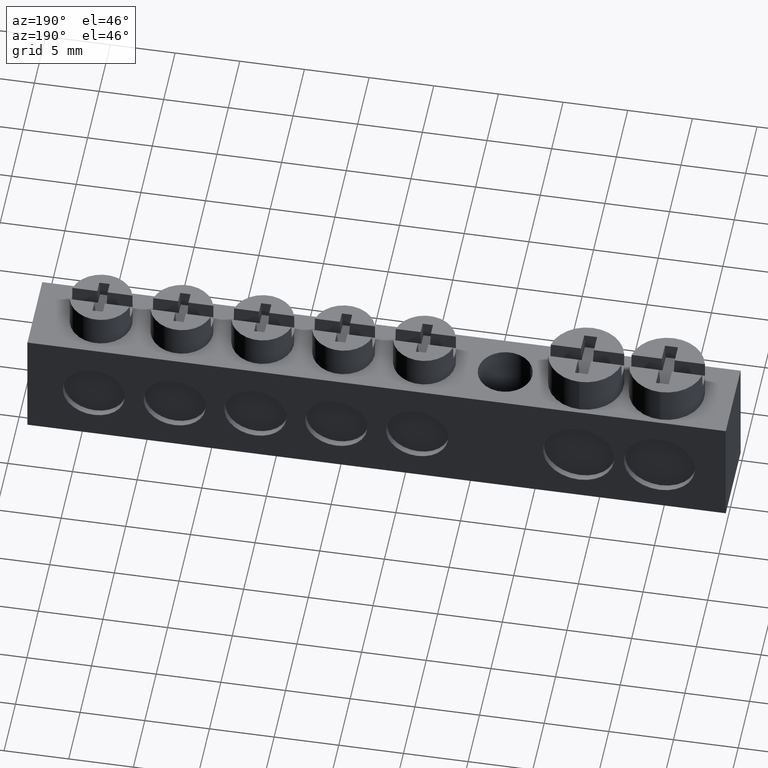
[diagram: clean part render]
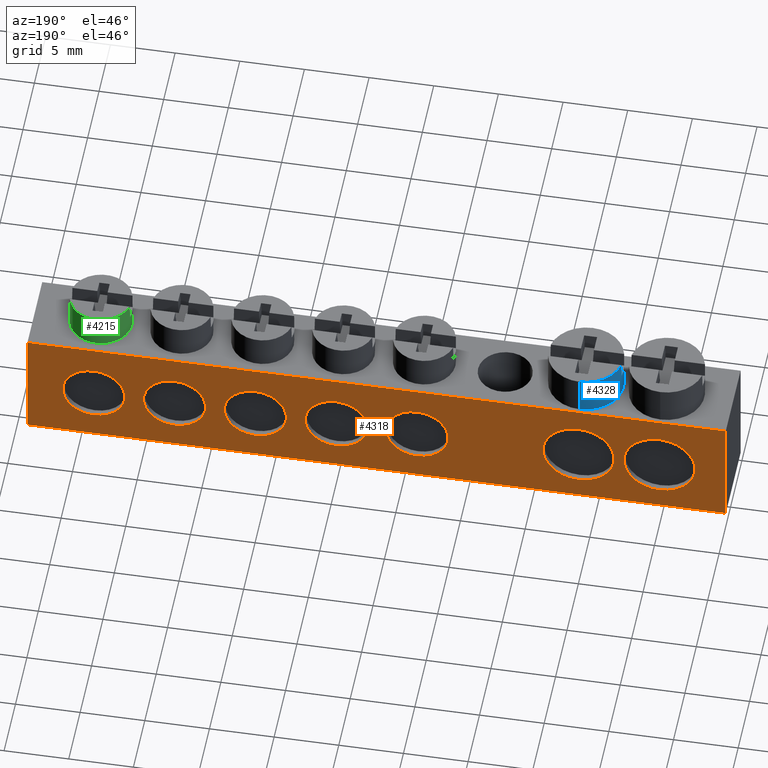
[diagram: same view with three faces highlighted in distinct colors, each labeled with its STEP entity id]
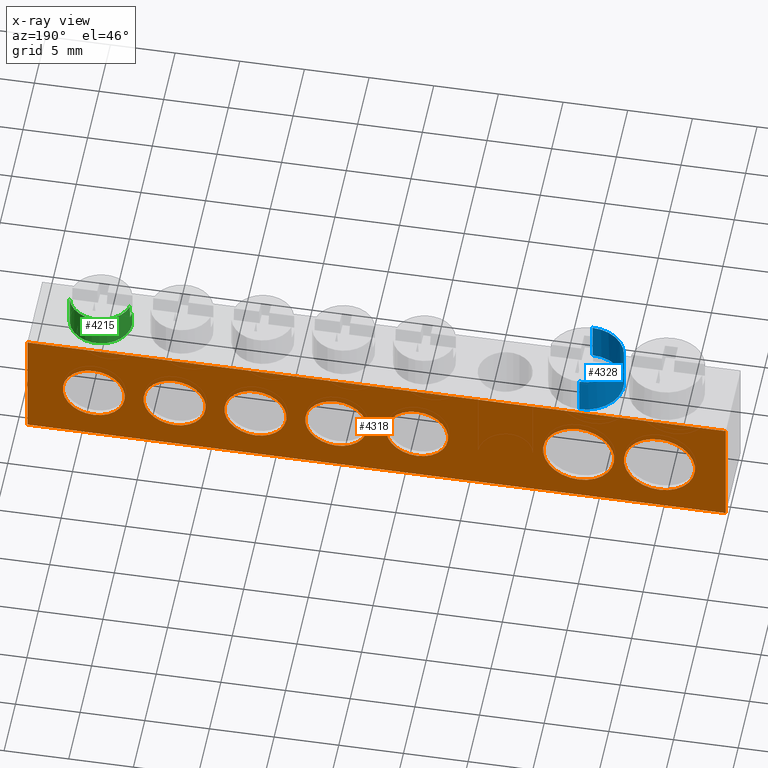
[diagram: x-ray of the same camera — body ghosted, the three highlighted faces saturated]
A machine part, auxiliary view with three faces highlighted in distinct colors.
The next image is the same camera in x-ray (body ghosted, the three faces saturated) — at least one of them is partly hidden behind the body in this view.
Their STEP definitions:

[orange] entity #4318 — the highlighted planar face has unit normal (0, -1, 0).
#6 = EDGE_CURVE ( 'NONE', #136, #224, #2558, .T. ) ;
#16 = EDGE_CURVE ( 'NONE', #207, #171, #2585, .T. ) ;
#18 = EDGE_CURVE ( 'NONE', #186, #226, #2563, .T. ) ;
#20 = EDGE_CURVE ( 'NONE', #223, #183, #2595, .T. ) ;
#22 = EDGE_CURVE ( 'NONE', #762, #738, #1889, .T. ) ;
#42 = EDGE_CURVE ( 'NONE', #234, #230, #2600, .T. ) ;
#46 = EDGE_CURVE ( 'NONE', #233, #135, #2617, .T. ) ;
#61 = EDGE_LOOP ( 'NONE', ( #585, #595 ) ) ;
#80 = EDGE_LOOP ( 'NONE', ( #596, #577 ) ) ;
#92 = EDGE_LOOP ( 'NONE', ( #593, #594 ) ) ;
#107 = EDGE_LOOP ( 'NONE', ( #565, #564, #580, #537 ) ) ;
#108 = EDGE_LOOP ( 'NONE', ( #587, #592 ) ) ;
#117 = EDGE_LOOP ( 'NONE', ( #444, #534 ) ) ;
#135 = VERTEX_POINT ( 'NONE', #2031 ) ;
#136 = VERTEX_POINT ( 'NONE', #2032 ) ;
#171 = VERTEX_POINT ( 'NONE', #2121 ) ;
#183 = VERTEX_POINT ( 'NONE', #2130 ) ;
#186 = VERTEX_POINT ( 'NONE', #2125 ) ;
#207 = VERTEX_POINT ( 'NONE', #2126 ) ;
#223 = VERTEX_POINT ( 'NONE', #2140 ) ;
#224 = VERTEX_POINT ( 'NONE', #2110 ) ;
#226 = VERTEX_POINT ( 'NONE', #2105 ) ;
#230 = VERTEX_POINT ( 'NONE', #2102 ) ;
#233 = VERTEX_POINT ( 'NONE', #2203 ) ;
#234 = VERTEX_POINT ( 'NONE', #2187 ) ;
#422 = ORIENTED_EDGE ( 'NONE', *, *, #4270, .F. ) ;
#444 = ORIENTED_EDGE ( 'NONE', *, *, #4254, .F. ) ;
#508 = ORIENTED_EDGE ( 'NONE', *, *, #16, .F. ) ;
#534 = ORIENTED_EDGE ( 'NONE', *, *, #6, .F. ) ;
#536 = ORIENTED_EDGE ( 'NONE', *, *, #4219, .F. ) ;
#537 = ORIENTED_EDGE ( 'NONE', *, *, #3015, .F. ) ;
#547 = ORIENTED_EDGE ( 'NONE', *, *, #3008, .F. ) ;
#564 = ORIENTED_EDGE ( 'NONE', *, *, #2995, .T. ) ;
#565 = ORIENTED_EDGE ( 'NONE', *, *, #2989, .T. ) ;
#577 = ORIENTED_EDGE ( 'NONE', *, *, #46, .F. ) ;
#580 = ORIENTED_EDGE ( 'NONE', *, *, #22, .T. ) ;
#585 = ORIENTED_EDGE ( 'NONE', *, *, #4264, .F. ) ;
#587 = ORIENTED_EDGE ( 'NONE', *, *, #4227, .F. ) ;
#592 = ORIENTED_EDGE ( 'NONE', *, *, #20, .F. ) ;
#593 = ORIENTED_EDGE ( 'NONE', *, *, #4240, .F. ) ;
#594 = ORIENTED_EDGE ( 'NONE', *, *, #42, .F. ) ;
#595 = ORIENTED_EDGE ( 'NONE', *, *, #18, .F. ) ;
#596 = ORIENTED_EDGE ( 'NONE', *, *, #4205, .F. ) ;
#612 = VERTEX_POINT ( 'NONE', #2146 ) ;
#690 = VERTEX_POINT ( 'NONE', #2250 ) ;
#738 = VERTEX_POINT ( 'NONE', #2319 ) ;
#743 = VERTEX_POINT ( 'NONE', #2282 ) ;
#762 = VERTEX_POINT ( 'NONE', #2271 ) ;
#782 = VERTEX_POINT ( 'NONE', #2292 ) ;
#884 = EDGE_LOOP ( 'NONE', ( #422, #508 ) ) ;
#903 = EDGE_LOOP ( 'NONE', ( #536, #547 ) ) ;
#1116 = CIRCLE ( 'NONE', #1155, 2.749999999999998200 ) ;
#1138 = CIRCLE ( 'NONE', #1139, 2.400000000000000800 ) ;
#1139 = AXIS2_PLACEMENT_3D ( 'NONE', #4340, #4378, #4391 ) ;
#1152 = CIRCLE ( 'NONE', #1157, 2.400000000000000800 ) ;
#1155 = AXIS2_PLACEMENT_3D ( 'NONE', #3381, #3454, #3518 ) ;
#1157 = AXIS2_PLACEMENT_3D ( 'NONE', #4081, #4092, #4101 ) ;
#1181 = CIRCLE ( 'NONE', #1212, 2.400000000000000800 ) ;
#1182 = CIRCLE ( 'NONE', #1204, 2.749999999999998200 ) ;
#1185 = AXIS2_PLACEMENT_3D ( 'NONE', #4503, #4512, #4498 ) ;
#1195 = CIRCLE ( 'NONE', #1209, 2.400000000000000800 ) ;
#1201 = CIRCLE ( 'NONE', #1185, 2.400000000000000800 ) ;
#1204 = AXIS2_PLACEMENT_3D ( 'NONE', #4397, #4393, #4430 ) ;
#1209 = AXIS2_PLACEMENT_3D ( 'NONE', #4487, #4511, #4488 ) ;
#1212 = AXIS2_PLACEMENT_3D ( 'NONE', #4468, #4465, #4470 ) ;
#1252 = AXIS2_PLACEMENT_3D ( 'NONE', #4677, #4652, #4689 ) ;
#1851 = CARTESIAN_POINT ( 'NONE',  ( 23.97000000000001300, 6.499999999999999100, 4.399999999999940800 ) ) ;
#1852 = DIRECTION ( 'NONE',  ( 0.0000000000000000000, 1.000000000000000000, 0.0000000000000000000 ) ) ;
#1865 = DIRECTION ( 'NONE',  ( 0.0000000000000000000, 0.0000000000000000000, -1.000000000000000000 ) ) ;
#1882 = CARTESIAN_POINT ( 'NONE',  ( 30.22000000000001000, 6.499999999999999100, 4.399999999999955900 ) ) ;
#1886 = DIRECTION ( 'NONE',  ( 0.0000000000000000000, 1.000000000000000000, 0.0000000000000000000 ) ) ;
#1889 = LINE ( 'NONE', #1895, #2592 ) ;
#1892 = CARTESIAN_POINT ( 'NONE',  ( 36.47000000000000600, 6.499999999999999100, 4.399999999999970200 ) ) ;
#1895 = CARTESIAN_POINT ( 'NONE',  ( 54.09999999999999400, 6.500000000000000000, 9.000000000000001800 ) ) ;
#1897 = DIRECTION ( 'NONE',  ( 0.0000000000000000000, 1.000000000000000000, 0.0000000000000000000 ) ) ;
#1903 = DIRECTION ( 'NONE',  ( 0.0000000000000000000, 0.0000000000000000000, -1.000000000000000000 ) ) ;
#1904 = DIRECTION ( 'NONE',  ( 0.0000000000000000000, 0.0000000000000000000, -1.000000000000000000 ) ) ;
#1907 = CARTESIAN_POINT ( 'NONE',  ( 48.97000000000000600, 6.500000000000000900, 4.399999999999999500 ) ) ;
#1911 = DIRECTION ( 'NONE',  ( 0.0000000000000000000, 0.0000000000000000000, -1.000000000000000000 ) ) ;
#1912 = DIRECTION ( 'NONE',  ( 0.0000000000000000000, 1.000000000000000000, 0.0000000000000000000 ) ) ;
#1923 = DIRECTION ( 'NONE',  ( 0.0000000000000000000, 0.0000000000000000000, -1.000000000000000000 ) ) ;
#1978 = CARTESIAN_POINT ( 'NONE',  ( 11.48000000000000000, 6.499999999999999100, 4.399999999999999500 ) ) ;
#1982 = CARTESIAN_POINT ( 'NONE',  ( 42.72000000000000600, 6.500000000000000900, 4.399999999999984400 ) ) ;
#1984 = DIRECTION ( 'NONE',  ( 0.0000000000000000000, 0.0000000000000000000, -1.000000000000000000 ) ) ;
#1993 = DIRECTION ( 'NONE',  ( 0.0000000000000000000, 0.0000000000000000000, -1.000000000000000000 ) ) ;
#2003 = DIRECTION ( 'NONE',  ( 0.0000000000000000000, 1.000000000000000000, 0.0000000000000000000 ) ) ;
#2005 = DIRECTION ( 'NONE',  ( 0.0000000000000000000, 1.000000000000000000, 0.0000000000000000000 ) ) ;
#2031 = CARTESIAN_POINT ( 'NONE',  ( 42.72000000000000600, 6.500000000000000900, 1.999999999999984000 ) ) ;
#2032 = CARTESIAN_POINT ( 'NONE',  ( 23.97000000000001300, 6.499999999999999100, 6.799999999999941200 ) ) ;
#2102 = CARTESIAN_POINT ( 'NONE',  ( 11.48000000000000000, 6.499999999999999100, 1.650000000000001200 ) ) ;
#2105 = CARTESIAN_POINT ( 'NONE',  ( 36.47000000000000600, 6.499999999999999100, 1.999999999999969400 ) ) ;
#2110 = CARTESIAN_POINT ( 'NONE',  ( 23.97000000000001300, 6.499999999999999100, 1.999999999999940700 ) ) ;
#2121 = CARTESIAN_POINT ( 'NONE',  ( 30.22000000000001000, 6.499999999999999100, 1.999999999999955400 ) ) ;
#2125 = CARTESIAN_POINT ( 'NONE',  ( 36.47000000000000600, 6.499999999999999100, 6.799999999999971400 ) ) ;
#2126 = CARTESIAN_POINT ( 'NONE',  ( 30.22000000000001000, 6.499999999999999100, 6.799999999999957200 ) ) ;
#2130 = CARTESIAN_POINT ( 'NONE',  ( 48.97000000000000600, 6.500000000000000900, 1.999999999999998700 ) ) ;
#2140 = CARTESIAN_POINT ( 'NONE',  ( 48.97000000000000600, 6.500000000000000900, 6.800000000000000700 ) ) ;
#2146 = CARTESIAN_POINT ( 'NONE',  ( 5.230000000000000400, 6.499999999999999100, 1.650000000000001200 ) ) ;
#2187 = CARTESIAN_POINT ( 'NONE',  ( 11.48000000000000000, 6.499999999999999100, 7.149999999999997700 ) ) ;
#2203 = CARTESIAN_POINT ( 'NONE',  ( 42.72000000000000600, 6.500000000000000900, 6.799999999999984700 ) ) ;
#2250 = CARTESIAN_POINT ( 'NONE',  ( 5.230000000000000400, 6.499999999999999100, 7.149999999999997700 ) ) ;
#2271 = CARTESIAN_POINT ( 'NONE',  ( 54.09999999999999400, 6.499999999999999100, 9.000000000000001800 ) ) ;
#2282 = CARTESIAN_POINT ( 'NONE',  ( 0.1000000000000000100, 6.499999999999999100, 9.000000000000001800 ) ) ;
#2292 = CARTESIAN_POINT ( 'NONE',  ( 0.1000000000000000100, 6.499999999999999100, 0.0000000000000000000 ) ) ;
#2319 = CARTESIAN_POINT ( 'NONE',  ( 54.09999999999999400, 6.499999999999999100, 0.0000000000000000000 ) ) ;
#2541 = CIRCLE ( 'NONE', #2551, 2.749999999999998200 ) ;
#2551 = AXIS2_PLACEMENT_3D ( 'NONE', #3469, #3464, #3489 ) ;
#2558 = CIRCLE ( 'NONE', #2581, 2.400000000000000800 ) ;
#2562 = AXIS2_PLACEMENT_3D ( 'NONE', #1882, #1912, #1903 ) ;
#2563 = CIRCLE ( 'NONE', #2574, 2.400000000000000800 ) ;
#2574 = AXIS2_PLACEMENT_3D ( 'NONE', #1892, #1897, #1911 ) ;
#2581 = AXIS2_PLACEMENT_3D ( 'NONE', #1851, #1852, #1865 ) ;
#2585 = CIRCLE ( 'NONE', #2562, 2.400000000000000800 ) ;
#2592 = VECTOR ( 'NONE', #1923, 1000.000000000000000 ) ;
#2595 = CIRCLE ( 'NONE', #2607, 2.400000000000000800 ) ;
#2600 = CIRCLE ( 'NONE', #2612, 2.749999999999998200 ) ;
#2607 = AXIS2_PLACEMENT_3D ( 'NONE', #1907, #1886, #1904 ) ;
#2612 = AXIS2_PLACEMENT_3D ( 'NONE', #1978, #2003, #1984 ) ;
#2617 = CIRCLE ( 'NONE', #2618, 2.400000000000000800 ) ;
#2618 = AXIS2_PLACEMENT_3D ( 'NONE', #1982, #2005, #1993 ) ;
#2808 = VECTOR ( 'NONE', #3530, 1000.000000000000000 ) ;
#2842 = VECTOR ( 'NONE', #3440, 1000.000000000000000 ) ;
#2867 = VECTOR ( 'NONE', #3471, 1000.000000000000000 ) ;
#2989 = EDGE_CURVE ( 'NONE', #782, #743, #3419, .T. ) ;
#2995 = EDGE_CURVE ( 'NONE', #743, #762, #3443, .T. ) ;
#3008 = EDGE_CURVE ( 'NONE', #690, #612, #2541, .T. ) ;
#3015 = EDGE_CURVE ( 'NONE', #782, #738, #3509, .T. ) ;
#3381 = CARTESIAN_POINT ( 'NONE',  ( 5.230000000000000400, 6.499999999999999100, 4.399999999999999500 ) ) ;
#3419 = LINE ( 'NONE', #3420, #2842 ) ;
#3420 = CARTESIAN_POINT ( 'NONE',  ( 0.1000000000000000100, 6.499999999999999100, 9.000000000000001800 ) ) ;
#3440 = DIRECTION ( 'NONE',  ( 0.0000000000000000000, 0.0000000000000000000, 1.000000000000000000 ) ) ;
#3443 = LINE ( 'NONE', #3444, #2867 ) ;
#3444 = CARTESIAN_POINT ( 'NONE',  ( 0.0000000000000000000, 6.499999999999999100, 9.000000000000001800 ) ) ;
#3454 = DIRECTION ( 'NONE',  ( 0.0000000000000000000, 1.000000000000000000, 0.0000000000000000000 ) ) ;
#3464 = DIRECTION ( 'NONE',  ( 0.0000000000000000000, 1.000000000000000000, 0.0000000000000000000 ) ) ;
#3469 = CARTESIAN_POINT ( 'NONE',  ( 5.230000000000000400, 6.499999999999999100, 4.399999999999999500 ) ) ;
#3471 = DIRECTION ( 'NONE',  ( 1.000000000000000000, -0.0000000000000000000, 0.0000000000000000000 ) ) ;
#3489 = DIRECTION ( 'NONE',  ( 0.0000000000000000000, 0.0000000000000000000, -1.000000000000000000 ) ) ;
#3509 = LINE ( 'NONE', #3543, #2808 ) ;
#3518 = DIRECTION ( 'NONE',  ( 0.0000000000000000000, 0.0000000000000000000, -1.000000000000000000 ) ) ;
#3530 = DIRECTION ( 'NONE',  ( 1.000000000000000000, -0.0000000000000000000, 0.0000000000000000000 ) ) ;
#3543 = CARTESIAN_POINT ( 'NONE',  ( 0.0000000000000000000, 6.499999999999999100, 0.0000000000000000000 ) ) ;
#4081 = CARTESIAN_POINT ( 'NONE',  ( 42.72000000000000600, 6.500000000000000900, 4.399999999999984400 ) ) ;
#4092 = DIRECTION ( 'NONE',  ( 0.0000000000000000000, 1.000000000000000000, 0.0000000000000000000 ) ) ;
#4101 = DIRECTION ( 'NONE',  ( 0.0000000000000000000, 0.0000000000000000000, -1.000000000000000000 ) ) ;
#4205 = EDGE_CURVE ( 'NONE', #135, #233, #1152, .T. ) ;
#4219 = EDGE_CURVE ( 'NONE', #612, #690, #1116, .T. ) ;
#4227 = EDGE_CURVE ( 'NONE', #183, #223, #1138, .T. ) ;
#4240 = EDGE_CURVE ( 'NONE', #230, #234, #1182, .T. ) ;
#4254 = EDGE_CURVE ( 'NONE', #224, #136, #1181, .T. ) ;
#4264 = EDGE_CURVE ( 'NONE', #226, #186, #1195, .T. ) ;
#4270 = EDGE_CURVE ( 'NONE', #171, #207, #1201, .T. ) ;
#4318 = ADVANCED_FACE ( 'NONE', ( #4674, #4700, #4675, #4657, #4685, #4669, #4651, #4676 ), #4692, .F. ) ;
#4340 = CARTESIAN_POINT ( 'NONE',  ( 48.97000000000000600, 6.500000000000000900, 4.399999999999999500 ) ) ;
#4378 = DIRECTION ( 'NONE',  ( 0.0000000000000000000, 1.000000000000000000, 0.0000000000000000000 ) ) ;
#4391 = DIRECTION ( 'NONE',  ( 0.0000000000000000000, 0.0000000000000000000, -1.000000000000000000 ) ) ;
#4393 = DIRECTION ( 'NONE',  ( 0.0000000000000000000, 1.000000000000000000, 0.0000000000000000000 ) ) ;
#4397 = CARTESIAN_POINT ( 'NONE',  ( 11.48000000000000000, 6.499999999999999100, 4.399999999999999500 ) ) ;
#4430 = DIRECTION ( 'NONE',  ( 0.0000000000000000000, 0.0000000000000000000, -1.000000000000000000 ) ) ;
#4465 = DIRECTION ( 'NONE',  ( 0.0000000000000000000, 1.000000000000000000, 0.0000000000000000000 ) ) ;
#4468 = CARTESIAN_POINT ( 'NONE',  ( 23.97000000000001300, 6.499999999999999100, 4.399999999999940800 ) ) ;
#4470 = DIRECTION ( 'NONE',  ( 0.0000000000000000000, 0.0000000000000000000, -1.000000000000000000 ) ) ;
#4487 = CARTESIAN_POINT ( 'NONE',  ( 36.47000000000000600, 6.499999999999999100, 4.399999999999970200 ) ) ;
#4488 = DIRECTION ( 'NONE',  ( 0.0000000000000000000, 0.0000000000000000000, -1.000000000000000000 ) ) ;
#4498 = DIRECTION ( 'NONE',  ( 0.0000000000000000000, 0.0000000000000000000, -1.000000000000000000 ) ) ;
#4503 = CARTESIAN_POINT ( 'NONE',  ( 30.22000000000001000, 6.499999999999999100, 4.399999999999955900 ) ) ;
#4511 = DIRECTION ( 'NONE',  ( 0.0000000000000000000, 1.000000000000000000, 0.0000000000000000000 ) ) ;
#4512 = DIRECTION ( 'NONE',  ( 0.0000000000000000000, 1.000000000000000000, 0.0000000000000000000 ) ) ;
#4651 = FACE_BOUND ( 'NONE', #884, .T. ) ;
#4652 = DIRECTION ( 'NONE',  ( 1.600298409572700300E-017, -1.000000000000000000, 0.0000000000000000000 ) ) ;
#4657 = FACE_BOUND ( 'NONE', #108, .T. ) ;
#4669 = FACE_BOUND ( 'NONE', #61, .T. ) ;
#4674 = FACE_OUTER_BOUND ( 'NONE', #107, .T. ) ;
#4675 = FACE_BOUND ( 'NONE', #92, .T. ) ;
#4676 = FACE_BOUND ( 'NONE', #117, .T. ) ;
#4677 = CARTESIAN_POINT ( 'NONE',  ( 0.0000000000000000000, 6.499999999999999100, 9.000000000000001800 ) ) ;
#4685 = FACE_BOUND ( 'NONE', #80, .T. ) ;
#4689 = DIRECTION ( 'NONE',  ( 1.000000000000000000, 1.600298409572700300E-017, 0.0000000000000000000 ) ) ;
#4692 = PLANE ( 'NONE',  #1252 ) ;
#4700 = FACE_BOUND ( 'NONE', #903, .T. ) ;

[blue] entity #4328 — the highlighted cylindrical surface (partial cylindrical patch) has radius 2.9 mm, axis along (0, -0, 1).
#26 = EDGE_CURVE ( 'NONE', #625, #603, #2589, .T. ) ;
#95 = EDGE_LOOP ( 'NONE', ( #584, #561, #559, #571, #582, #551, #548, #567 ) ) ;
#168 = VERTEX_POINT ( 'NONE', #2138 ) ;
#169 = VERTEX_POINT ( 'NONE', #2107 ) ;
#548 = ORIENTED_EDGE ( 'NONE', *, *, #2975, .T. ) ;
#551 = ORIENTED_EDGE ( 'NONE', *, *, #3065, .T. ) ;
#559 = ORIENTED_EDGE ( 'NONE', *, *, #4282, .T. ) ;
#561 = ORIENTED_EDGE ( 'NONE', *, *, #26, .T. ) ;
#567 = ORIENTED_EDGE ( 'NONE', *, *, #2969, .T. ) ;
#571 = ORIENTED_EDGE ( 'NONE', *, *, #2945, .T. ) ;
#582 = ORIENTED_EDGE ( 'NONE', *, *, #981, .T. ) ;
#584 = ORIENTED_EDGE ( 'NONE', *, *, #4284, .F. ) ;
#600 = VERTEX_POINT ( 'NONE', #2188 ) ;
#603 = VERTEX_POINT ( 'NONE', #2157 ) ;
#625 = VERTEX_POINT ( 'NONE', #2158 ) ;
#629 = VERTEX_POINT ( 'NONE', #2161 ) ;
#731 = VERTEX_POINT ( 'NONE', #2294 ) ;
#737 = VERTEX_POINT ( 'NONE', #2296 ) ;
#923 =( BOUNDED_CURVE ( )  B_SPLINE_CURVE ( 3, ( #3408, #3390, #3403, #3396 ),
 .UNSPECIFIED., .F., .T. ) 
 B_SPLINE_CURVE_WITH_KNOTS ( ( 4, 4 ),
 ( 4.898675119793457700, 4.920790786976436200 ),
 .UNSPECIFIED. ) 
 CURVE ( )  GEOMETRIC_REPRESENTATION_ITEM ( )  RATIONAL_B_SPLINE_CURVE ( ( 1.000000000000000000, 0.9999592418540675900, 0.9999592418540675900, 1.000000000000000000 ) ) 
 REPRESENTATION_ITEM ( '' )  );
#924 =( BOUNDED_CURVE ( )  B_SPLINE_CURVE ( 3, ( #2401, #2425, #2426, #2454 ),
 .UNSPECIFIED., .F., .T. ) 
 B_SPLINE_CURVE_WITH_KNOTS ( ( 4, 4 ),
 ( 1.362394520203149800, 1.384510187386128500 ),
 .UNSPECIFIED. ) 
 CURVE ( )  GEOMETRIC_REPRESENTATION_ITEM ( )  RATIONAL_B_SPLINE_CURVE ( ( 1.000000000000000000, 0.9999592418540675900, 0.9999592418540675900, 1.000000000000000000 ) ) 
 REPRESENTATION_ITEM ( '' )  );
#981 = EDGE_CURVE ( 'NONE', #731, #169, #924, .T. ) ;
#1239 = VECTOR ( 'NONE', #4541, 1000.000000000000000 ) ;
#1243 = VECTOR ( 'NONE', #4519, 1000.000000000000000 ) ;
#1305 = AXIS2_PLACEMENT_3D ( 'NONE', #4727, #4736, #4743 ) ;
#1308 = CIRCLE ( 'NONE', #1311, 2.900000000000000400 ) ;
#1311 = AXIS2_PLACEMENT_3D ( 'NONE', #3752, #3739, #3753 ) ;
#1970 = CARTESIAN_POINT ( 'NONE',  ( 11.47500000000000700, 3.249999999999999600, 9.000000000000001800 ) ) ;
#1972 = DIRECTION ( 'NONE',  ( 0.0000000000000000000, -1.000000000000000000, 0.0000000000000000000 ) ) ;
#1974 = DIRECTION ( 'NONE',  ( 6.245004513516505500E-017, -1.110223024625156500E-016, 1.000000000000000000 ) ) ;
#2107 = CARTESIAN_POINT ( 'NONE',  ( 8.624682543622388000, 2.715499861675388700, 10.80000000000001100 ) ) ;
#2138 = CARTESIAN_POINT ( 'NONE',  ( 8.625666477582244700, 3.789720740778410600, 10.80000000000001500 ) ) ;
#2157 = CARTESIAN_POINT ( 'NONE',  ( 11.47500000000000700, 0.3499999999999992000, 9.000000000000001800 ) ) ;
#2158 = CARTESIAN_POINT ( 'NONE',  ( 11.47500000000000700, 6.149999999999999500, 9.000000000000001800 ) ) ;
#2161 = CARTESIAN_POINT ( 'NONE',  ( 11.47500000000000700, 6.149999999999999500, 12.00000000000001800 ) ) ;
#2188 = CARTESIAN_POINT ( 'NONE',  ( 11.47500000000000700, 0.3499999999999987600, 12.00000000000000400 ) ) ;
#2294 = CARTESIAN_POINT ( 'NONE',  ( 8.637199427836018000, 2.652599035298940600, 12.00000000000000400 ) ) ;
#2296 = CARTESIAN_POINT ( 'NONE',  ( 8.638298568878152400, 3.852598531919238000, 12.00000000000001100 ) ) ;
#2401 = CARTESIAN_POINT ( 'NONE',  ( 8.637199427836018000, 2.652599035298940600, 12.00000000000000400 ) ) ;
#2425 = CARTESIAN_POINT ( 'NONE',  ( 8.632795364447121100, 2.673519412639003600, 11.60089255937236500 ) ) ;
#2426 = CARTESIAN_POINT ( 'NONE',  ( 8.628622899647313100, 2.694487209373005200, 11.20087625544947800 ) ) ;
#2454 = CARTESIAN_POINT ( 'NONE',  ( 8.624682543622388000, 2.715499861675388700, 10.80000000000001100 ) ) ;
#2589 = CIRCLE ( 'NONE', #2637, 2.900000000000000400 ) ;
#2637 = AXIS2_PLACEMENT_3D ( 'NONE', #1970, #1974, #1972 ) ;
#2799 = CIRCLE ( 'NONE', #2800, 2.900000000000000400 ) ;
#2800 = AXIS2_PLACEMENT_3D ( 'NONE', #3283, #3306, #3291 ) ;
#2833 = AXIS2_PLACEMENT_3D ( 'NONE', #3369, #3409, #3401 ) ;
#2864 = CIRCLE ( 'NONE', #2833, 2.900000000000000400 ) ;
#2945 = EDGE_CURVE ( 'NONE', #600, #731, #2799, .T. ) ;
#2969 = EDGE_CURVE ( 'NONE', #737, #629, #2864, .T. ) ;
#2975 = EDGE_CURVE ( 'NONE', #168, #737, #923, .T. ) ;
#3065 = EDGE_CURVE ( 'NONE', #169, #168, #1308, .T. ) ;
#3283 = CARTESIAN_POINT ( 'NONE',  ( 11.47500000000000700, 3.249999999999999100, 12.00000000000000400 ) ) ;
#3291 = DIRECTION ( 'NONE',  ( 0.0000000000000000000, -1.000000000000000000, 0.0000000000000000000 ) ) ;
#3306 = DIRECTION ( 'NONE',  ( -6.245004513516505500E-017, 1.110223024625156500E-016, -1.000000000000000000 ) ) ;
#3369 = CARTESIAN_POINT ( 'NONE',  ( 11.47500000000000700, 3.249999999999999100, 12.00000000000001800 ) ) ;
#3390 = CARTESIAN_POINT ( 'NONE',  ( 8.629645320093622700, 3.810726139480974600, 11.20087625544948700 ) ) ;
#3396 = CARTESIAN_POINT ( 'NONE',  ( 8.638298568878152400, 3.852598531919238000, 12.00000000000001100 ) ) ;
#3401 = DIRECTION ( 'NONE',  ( 0.0000000000000000000, -1.000000000000000000, 0.0000000000000000000 ) ) ;
#3403 = CARTESIAN_POINT ( 'NONE',  ( 8.633856188819462900, 3.831686257490130900, 11.60089255937236900 ) ) ;
#3408 = CARTESIAN_POINT ( 'NONE',  ( 8.625666477582244700, 3.789720740778410600, 10.80000000000001500 ) ) ;
#3409 = DIRECTION ( 'NONE',  ( -6.245004513516505500E-017, 1.110223024625156500E-016, -1.000000000000000000 ) ) ;
#3739 = DIRECTION ( 'NONE',  ( -6.245004513516505500E-017, 1.110223024625156500E-016, -1.000000000000000000 ) ) ;
#3752 = CARTESIAN_POINT ( 'NONE',  ( 11.47500000000000700, 3.249999999999999600, 10.80000000000001100 ) ) ;
#3753 = DIRECTION ( 'NONE',  ( 0.0000000000000000000, -1.000000000000000000, 0.0000000000000000000 ) ) ;
#4282 = EDGE_CURVE ( 'NONE', #603, #600, #4540, .T. ) ;
#4284 = EDGE_CURVE ( 'NONE', #625, #629, #4544, .T. ) ;
#4328 = ADVANCED_FACE ( 'NONE', ( #4666 ), #4714, .T. ) ;
#4519 = DIRECTION ( 'NONE',  ( 6.245004513516505500E-017, -1.110223024625156500E-016, 1.000000000000000000 ) ) ;
#4530 = CARTESIAN_POINT ( 'NONE',  ( 11.47500000000000700, 6.149999999999999500, 9.000000000000003600 ) ) ;
#4533 = CARTESIAN_POINT ( 'NONE',  ( 11.47500000000000700, 0.3499999999999992000, 9.000000000000003600 ) ) ;
#4540 = LINE ( 'NONE', #4533, #1239 ) ;
#4541 = DIRECTION ( 'NONE',  ( 6.245004513516505500E-017, -1.110223024625156500E-016, 1.000000000000000000 ) ) ;
#4544 = LINE ( 'NONE', #4530, #1243 ) ;
#4666 = FACE_OUTER_BOUND ( 'NONE', #95, .T. ) ;
#4714 = CYLINDRICAL_SURFACE ( 'NONE', #1305, 2.900000000000000400 ) ;
#4727 = CARTESIAN_POINT ( 'NONE',  ( 11.47500000000000700, 3.249999999999999600, 9.000000000000003600 ) ) ;
#4736 = DIRECTION ( 'NONE',  ( 6.245004513516505500E-017, -1.110223024625156500E-016, 1.000000000000000000 ) ) ;
#4743 = DIRECTION ( 'NONE',  ( 0.0000000000000000000, -1.000000000000000000, 0.0000000000000000000 ) ) ;

[green] entity #4215 — the highlighted cylindrical surface (edge-blend (fillet) strip) has radius 2.4 mm, axis along (0, -0, 1).
#274 = ORIENTED_EDGE ( 'NONE', *, *, #4221, .T. ) ;
#308 = ORIENTED_EDGE ( 'NONE', *, *, #4250, .T. ) ;
#322 = ORIENTED_EDGE ( 'NONE', *, *, #4193, .T. ) ;
#327 = ORIENTED_EDGE ( 'NONE', *, *, #4277, .T. ) ;
#331 = ORIENTED_EDGE ( 'NONE', *, *, #4230, .T. ) ;
#333 = ORIENTED_EDGE ( 'NONE', *, *, #4242, .F. ) ;
#337 = ORIENTED_EDGE ( 'NONE', *, *, #4233, .T. ) ;
#343 = ORIENTED_EDGE ( 'NONE', *, *, #4286, .T. ) ;
#599 = VERTEX_POINT ( 'NONE', #2189 ) ;
#613 = VERTEX_POINT ( 'NONE', #2162 ) ;
#631 = VERTEX_POINT ( 'NONE', #2202 ) ;
#636 = VERTEX_POINT ( 'NONE', #2197 ) ;
#641 = VERTEX_POINT ( 'NONE', #2143 ) ;
#654 = VERTEX_POINT ( 'NONE', #2175 ) ;
#656 = VERTEX_POINT ( 'NONE', #2177 ) ;
#658 = VERTEX_POINT ( 'NONE', #2260 ) ;
#816 = EDGE_LOOP ( 'NONE', ( #327, #337, #322, #308, #274, #343, #331, #333 ) ) ;
#941 =( BOUNDED_CURVE ( )  B_SPLINE_CURVE ( 3, ( #4408, #4453, #4460, #4472 ),
 .UNSPECIFIED., .F., .T. ) 
 B_SPLINE_CURVE_WITH_KNOTS ( ( 4, 4 ),
 ( 4.938096621249751900, 4.965069235526770300 ),
 .UNSPECIFIED. ) 
 CURVE ( )  GEOMETRIC_REPRESENTATION_ITEM ( )  RATIONAL_B_SPLINE_CURVE ( ( 1.000000000000000000, 0.9999393740921527200, 0.9999393740921527200, 1.000000000000000000 ) ) 
 REPRESENTATION_ITEM ( '' )  );
#950 =( BOUNDED_CURVE ( )  B_SPLINE_CURVE ( 3, ( #4536, #4523, #4528, #4552 ),
 .UNSPECIFIED., .F., .F. ) 
 B_SPLINE_CURVE_WITH_KNOTS ( ( 4, 4 ),
 ( 1.318116071652815300, 1.345088685929834300 ),
 .UNSPECIFIED. ) 
 CURVE ( )  GEOMETRIC_REPRESENTATION_ITEM ( )  RATIONAL_B_SPLINE_CURVE ( ( 1.000000000000000000, 0.9999393740921527200, 0.9999393740921527200, 1.000000000000000000 ) ) 
 REPRESENTATION_ITEM ( '' )  );
#1121 = CIRCLE ( 'NONE', #1126, 2.399999999999999500 ) ;
#1122 = CIRCLE ( 'NONE', #1143, 2.399999999999999500 ) ;
#1126 = AXIS2_PLACEMENT_3D ( 'NONE', #4801, #4798, #4810 ) ;
#1131 = CIRCLE ( 'NONE', #1135, 2.399999999999999500 ) ;
#1135 = AXIS2_PLACEMENT_3D ( 'NONE', #4387, #4375, #4367 ) ;
#1143 = AXIS2_PLACEMENT_3D ( 'NONE', #4011, #4016, #4013 ) ;
#1144 = VECTOR ( 'NONE', #4384, 1000.000000000000000 ) ;
#1162 = AXIS2_PLACEMENT_3D ( 'NONE', #4140, #4124, #4135 ) ;
#1178 = VECTOR ( 'NONE', #4432, 1000.000000000000000 ) ;
#1228 = AXIS2_PLACEMENT_3D ( 'NONE', #4535, #4557, #4546 ) ;
#1266 = CIRCLE ( 'NONE', #1228, 2.399999999999999500 ) ;
#2143 = CARTESIAN_POINT ( 'NONE',  ( 51.29933860345492700, 3.847871270834501500, 11.57000000000000200 ) ) ;
#2162 = CARTESIAN_POINT ( 'NONE',  ( 46.57500000000001000, 3.250000000000003100, 9.000000000000001800 ) ) ;
#2175 = CARTESIAN_POINT ( 'NONE',  ( 46.63636658699693500, 3.789252964373464900, 10.37000000000000300 ) ) ;
#2177 = CARTESIAN_POINT ( 'NONE',  ( 46.57500000000001000, 3.250000000000003100, 10.37000000000000300 ) ) ;
#2189 = CARTESIAN_POINT ( 'NONE',  ( 51.31461734696295500, 3.784967914729576100, 10.37000000000000500 ) ) ;
#2197 = CARTESIAN_POINT ( 'NONE',  ( 46.65176053758722200, 3.852128225785810900, 11.57000000000000000 ) ) ;
#2202 = CARTESIAN_POINT ( 'NONE',  ( 51.37500000000001400, 3.250000000000002700, 10.37000000000000300 ) ) ;
#2260 = CARTESIAN_POINT ( 'NONE',  ( 51.37500000000001400, 3.250000000000002700, 9.000000000000001800 ) ) ;
#4011 = CARTESIAN_POINT ( 'NONE',  ( 48.97500000000000900, 3.250000000000002700, 10.37000000000000300 ) ) ;
#4013 = DIRECTION ( 'NONE',  ( 1.000000000000000000, -6.143812310751193100E-015, 0.0000000000000000000 ) ) ;
#4016 = DIRECTION ( 'NONE',  ( -6.938893903907229900E-018, 6.938893903907229900E-018, -1.000000000000000000 ) ) ;
#4117 = CYLINDRICAL_SURFACE ( 'NONE', #1162, 2.399999999999999500 ) ;
#4124 = DIRECTION ( 'NONE',  ( 6.938893903907229900E-018, -6.938893903907229900E-018, 1.000000000000000000 ) ) ;
#4135 = DIRECTION ( 'NONE',  ( 1.000000000000000000, 0.0000000000000000000, 0.0000000000000000000 ) ) ;
#4140 = CARTESIAN_POINT ( 'NONE',  ( 48.97500000000000900, 3.250000000000002700, 9.000000000000003600 ) ) ;
#4142 = FACE_OUTER_BOUND ( 'NONE', #816, .T. ) ;
#4193 = EDGE_CURVE ( 'NONE', #656, #654, #1122, .T. ) ;
#4215 = ADVANCED_FACE ( 'NONE', ( #4142 ), #4117, .T. ) ;
#4221 = EDGE_CURVE ( 'NONE', #636, #641, #1121, .T. ) ;
#4230 = EDGE_CURVE ( 'NONE', #599, #631, #1131, .T. ) ;
#4233 = EDGE_CURVE ( 'NONE', #613, #656, #4382, .T. ) ;
#4242 = EDGE_CURVE ( 'NONE', #658, #631, #4417, .T. ) ;
#4250 = EDGE_CURVE ( 'NONE', #654, #636, #941, .T. ) ;
#4277 = EDGE_CURVE ( 'NONE', #658, #613, #1266, .T. ) ;
#4286 = EDGE_CURVE ( 'NONE', #641, #599, #950, .T. ) ;
#4367 = DIRECTION ( 'NONE',  ( 1.000000000000000000, 2.312964634635743200E-014, 0.0000000000000000000 ) ) ;
#4375 = DIRECTION ( 'NONE',  ( -6.938893903907229900E-018, 6.938893903907229900E-018, -1.000000000000000000 ) ) ;
#4382 = LINE ( 'NONE', #4383, #1144 ) ;
#4383 = CARTESIAN_POINT ( 'NONE',  ( 46.57500000000001000, 3.250000000000003100, 9.000000000000003600 ) ) ;
#4384 = DIRECTION ( 'NONE',  ( 6.938893903907229900E-018, -6.938893903907229900E-018, 1.000000000000000000 ) ) ;
#4387 = CARTESIAN_POINT ( 'NONE',  ( 48.97500000000000900, 3.250000000000002700, 10.37000000000000300 ) ) ;
#4408 = CARTESIAN_POINT ( 'NONE',  ( 46.63636658699693500, 3.789252964373464900, 10.37000000000000300 ) ) ;
#4417 = LINE ( 'NONE', #4423, #1178 ) ;
#4423 = CARTESIAN_POINT ( 'NONE',  ( 51.37500000000001400, 3.250000000000002700, 9.000000000000003600 ) ) ;
#4432 = DIRECTION ( 'NONE',  ( 6.938893903907229900E-018, -6.938893903907229900E-018, 1.000000000000000000 ) ) ;
#4453 = CARTESIAN_POINT ( 'NONE',  ( 46.64121508804147000, 3.810279954107185200, 10.77130343604927500 ) ) ;
#4460 = CARTESIAN_POINT ( 'NONE',  ( 46.64634671601452000, 3.831239645278272200, 11.17132768788269600 ) ) ;
#4472 = CARTESIAN_POINT ( 'NONE',  ( 46.65176053758722200, 3.852128225785810900, 11.57000000000000000 ) ) ;
#4523 = CARTESIAN_POINT ( 'NONE',  ( 51.30471415013275300, 3.826972807791603000, 11.17132768788272700 ) ) ;
#4528 = CARTESIAN_POINT ( 'NONE',  ( 51.30980737341671000, 3.806003751155198500, 10.77130343604929600 ) ) ;
#4535 = CARTESIAN_POINT ( 'NONE',  ( 48.97500000000000900, 3.250000000000002700, 9.000000000000001800 ) ) ;
#4536 = CARTESIAN_POINT ( 'NONE',  ( 51.29933860345492700, 3.847871270834501500, 11.57000000000000200 ) ) ;
#4546 = DIRECTION ( 'NONE',  ( 1.000000000000000000, 0.0000000000000000000, 0.0000000000000000000 ) ) ;
#4552 = CARTESIAN_POINT ( 'NONE',  ( 51.31461734696295500, 3.784967914729576100, 10.37000000000000500 ) ) ;
#4557 = DIRECTION ( 'NONE',  ( 6.938893903907229900E-018, -6.938893903907229900E-018, 1.000000000000000000 ) ) ;
#4798 = DIRECTION ( 'NONE',  ( -6.938893903907229900E-018, 6.938893903907229900E-018, -1.000000000000000000 ) ) ;
#4801 = CARTESIAN_POINT ( 'NONE',  ( 48.97500000000000900, 3.250000000000002700, 11.56999999999999900 ) ) ;
#4810 = DIRECTION ( 'NONE',  ( 1.000000000000000000, 0.0000000000000000000, 0.0000000000000000000 ) ) ;